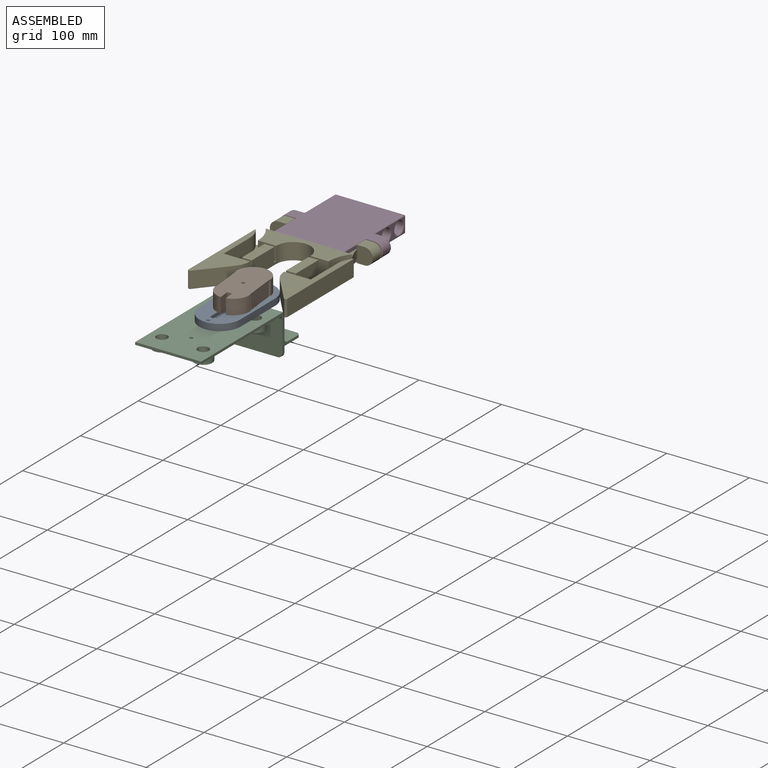
[diagram: assembled view]
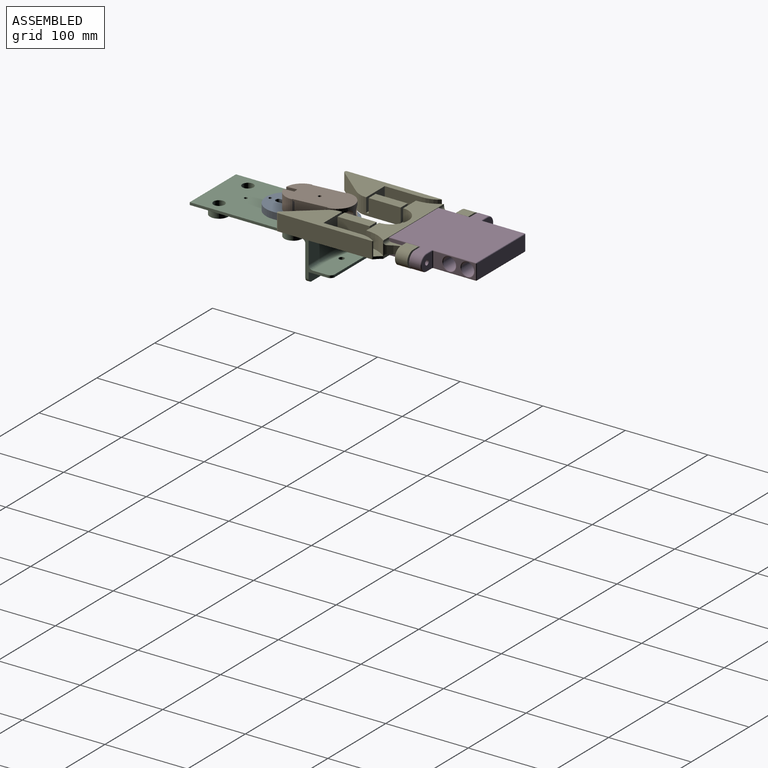
[diagram: assembled view, second angle]
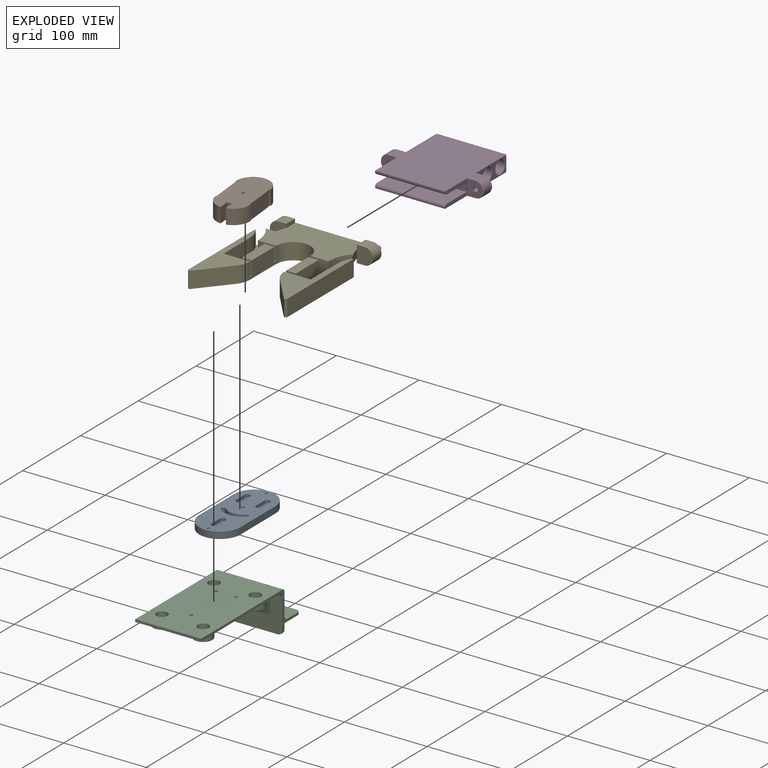
[diagram: exploded view]
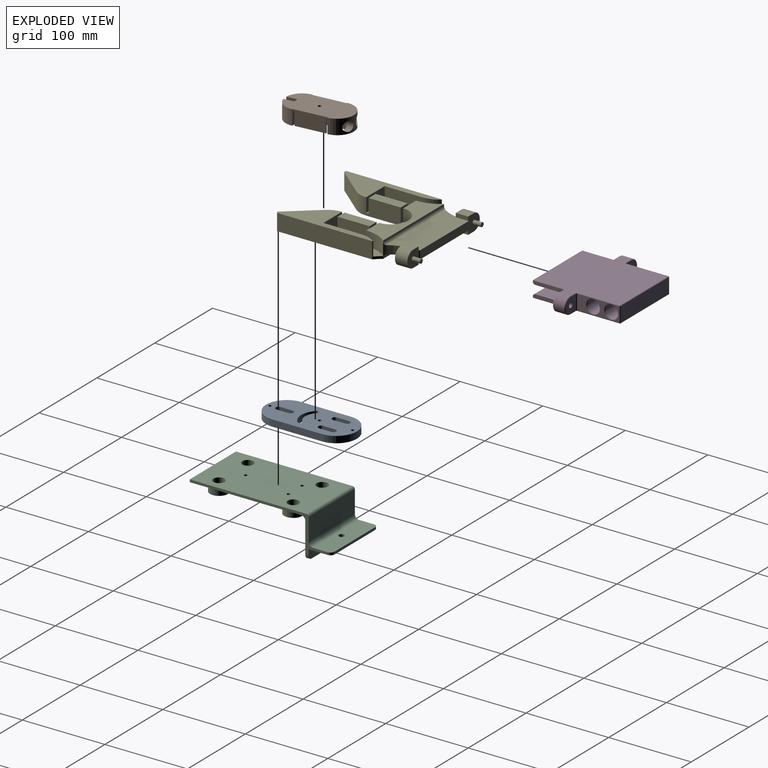
[diagram: exploded view, second angle]
ASSEMBLY  parts=5 mates=3
PART A: 42 faces, bbox 50x110x8 mm
  f0: plane 7x7mm, normal (0,0,-1), area 25.9mm2, adj f23,f38
  f1: plane 60x8mm, normal (1,0,0), area 480mm2, adj f2,f16,f24,f40
  f2: cylinder r=25mm len=50mm, axis (0,0,-1), area 628.3mm2, adj f1,f3,f24,f40
  f3: plane 60x8mm, normal (-1,0,0), area 480mm2, adj f2,f16,f24,f40
  f4: cylinder r=3.5mm len=7mm, axis (0,0,-1), area 44mm2, adj f5,f17,f24,f41
  f5: plane 15x4mm, normal (-1,0,0), area 60mm2, adj f4,f6,f24,f41
  f6: cylinder r=3.5mm len=7mm, axis (0,0,-1), area 44mm2, adj f5,f17,f24,f41
  f7: cylinder r=3.5mm len=7mm, axis (0,0,-1), area 44mm2, adj f8,f18,f24,f26
  f8: plane 15x4mm, normal (-1,0,0), area 60mm2, adj f7,f9,f24,f26
  f9: cylinder r=3.5mm len=7mm, axis (0,0,-1), area 44mm2, adj f8,f18,f24,f26
  f10: cylinder r=2.5mm len=8mm, axis (0,0,-1), area 62.8mm2, adj f11,f19,f24,f40
  f11: cylinder r=22.5mm len=31.82mm, axis (0,0,-1), area 282.7mm2, adj f10,f12,f24,f40
  f12: cylinder r=2.5mm len=8mm, axis (0,0,-1), area 62.8mm2, adj f11,f19,f24,f40
  f13: plane 15x4mm, normal (1,0,0), area 60mm2, adj f14,f22,f24,f25
  f14: cylinder r=3.5mm len=7mm, axis (0,0,-1), area 44mm2, adj f13,f15,f24,f25
  f15: plane 15x4mm, normal (-1,0,0), area 60mm2, adj f14,f22,f24,f25
  f16: cylinder r=25mm len=50mm, axis (0,0,-1), area 628.3mm2, adj f1,f3,f24,f40
  f17: plane 15x4mm, normal (1,0,0), area 60mm2, adj f4,f6,f24,f41
  f18: plane 15x4mm, normal (1,0,0), area 60mm2, adj f7,f9,f24,f26
  f19: cylinder r=17.5mm len=24.75mm, axis (0,0,-1), area 219.9mm2, adj f10,f12,f24,f40
  f20: cylinder r=1.9mm len=8mm, axis (0,0,-1), area 95.5mm2, adj f24,f40
  f21: cylinder r=1.9mm len=8mm, axis (0,0,-1), area 95.5mm2, adj f24,f40
  f22: cylinder r=3.5mm len=7mm, axis (0,0,-1), area 44mm2, adj f13,f15,f24,f25
  f23: cylinder r=2mm len=4mm, axis (0,0,-1), area 50.3mm2, adj f0,f24
  f24: plane 110x50mm, normal (0,0,1), area 4321.1mm2, adj f1,f2,f3,f4,f5,f6,f7,f8
  f25: plane 22x7mm, normal (0,0,1), area 70.9mm2, adj f13,f14,f15,f22,f27,f28,f29,f39
  f26: plane 21.99x7mm, normal (0,0,1), area 70.9mm2, adj f7,f8,f9,f18,f30,f31,f32,f36
  f27: plane 15x4mm, normal (1,0,0), area 60mm2, adj f25,f28,f39,f40
  f28: cylinder r=2mm len=4mm, axis (0,0,1), area 25.1mm2, adj f25,f27,f29,f40
  f29: plane 15x4mm, normal (-1,0,0), area 60mm2, adj f25,f28,f39,f40
  f30: cylinder r=2mm len=4mm, axis (0,0,1), area 25.4mm2, adj f26,f31,f36,f40
  f31: plane 14.93x4mm, normal (-1,0,0), area 59.7mm2, adj f26,f30,f32,f40
  f32: cylinder r=2mm len=4mm, axis (0,0,1), area 25.4mm2, adj f26,f31,f36,f40
  f33: cylinder r=2mm len=4mm, axis (0,0,1), area 25.1mm2, adj f34,f37,f40,f41
  f34: plane 15x4mm, normal (-1,0,0), area 60mm2, adj f33,f35,f40,f41
  f35: cylinder r=2mm len=4mm, axis (0,0,1), area 25.1mm2, adj f34,f37,f40,f41
  f36: plane 14.93x4mm, normal (1,0,0), area 59.7mm2, adj f26,f30,f32,f40
  f37: plane 15x4mm, normal (1,0,0), area 60mm2, adj f33,f35,f40,f41
  f38: cylinder r=3.5mm len=7mm, axis (0,0,1), area 88mm2, adj f0,f40
  f39: cylinder r=2mm len=4mm, axis (0,0,1), area 25.1mm2, adj f25,f27,f29,f40
  f40: plane 110x50mm, normal (0,0,-1), area 4508mm2, adj f1,f2,f3,f10,f11,f12,f16,f19
  f41: plane 22x7mm, normal (0,0,1), area 70.9mm2, adj f4,f5,f6,f17,f33,f34,f35,f37
PART B: 57 faces, bbox 40x79.8x23 mm
  f0: plane 67.29x40mm, normal (0,0,1), area 654.1mm2, adj f2,f3,f6,f7,f11,f12,f16,f19
  f1: plane 57.79x17.1mm, normal (0,0,1), area 492.5mm2, adj f2,f3,f4,f8,f13,f17,f18,f35
  f2: plane 16x16mm, normal (0,-1,0), area 248mm2, adj f0,f1,f18,f19,f21,f53,f54,f56
  f3: plane 18x12.58mm, normal (-1,0,0), area 217.9mm2, adj f0,f1,f4,f5,f45,f52,f55,f56
  f4: cylinder r=20mm len=19.79mm, axis (0,0,-1), area 513.1mm2, adj f1,f3,f5,f13
  f5: plane 79.79x40mm, normal (0,0,-1), area 2706.3mm2, adj f3,f4,f6,f8,f9,f11,f12,f13
  f6: cylinder r=20mm len=40mm, axis (0,0,-1), area 874.7mm2, adj f0,f5,f11,f12,f41,f42
  f7: cylinder r=17.6mm len=16mm, axis (0,0,1), area 196.9mm2, adj f0,f12,f20,f21,f42
  f8: plane 40x18mm, normal (1,0,0), area 656mm2, adj f1,f5,f12,f13,f17,f21,f36,f40
  f9: plane 40x18mm, normal (-1,0,0), area 656mm2, adj f5,f10,f11,f15,f23,f28,f29,f34
  f10: plane 57.79x17.1mm, normal (0,0,1), area 492.5mm2, adj f9,f14,f15,f22,f23,f27,f29,f30
  f11: plane 18x2.4mm, normal (0,1,0), area 40mm2, adj f0,f5,f6,f9,f24,f28
  f12: plane 18x2.4mm, normal (0,1,0), area 40mm2, adj f0,f5,f6,f7,f8,f21
  f13: plane 18x6.4mm, normal (0,-1,0), area 104mm2, adj f1,f4,f5,f8,f37,f40
  f14: cylinder r=20mm len=19.79mm, axis (0,0,-1), area 513.1mm2, adj f5,f10,f15,f46
  f15: plane 18x6.4mm, normal (0,-1,0), area 104mm2, adj f5,f9,f10,f14,f33,f34
  f16: cylinder r=2mm len=18mm, axis (0,0,-1), area 226.2mm2, adj f0,f5
  f17: plane 16x1.5mm, normal (0,-1,0), area 24mm2, adj f1,f8,f18,f21
  f18: plane 16x14mm, normal (-1,0,0), area 224mm2, adj f1,f2,f17,f21
  f19: plane 28x16mm, normal (1,0,0), area 448mm2, adj f0,f2,f20,f21
  f20: plane 16x11.17mm, normal (0,1,0), area 74.9mm2, adj f0,f7,f19,f21,f42
  f21: plane 28x17.5mm, normal (0,0,1), area 432mm2, adj f2,f7,f8,f12,f17,f18,f19,f20
  f22: plane 16x14mm, normal (1,0,0), area 224mm2, adj f10,f23,f27,f28
  f23: plane 16x1.5mm, normal (0,-1,0), area 24mm2, adj f9,f10,f22,f28
  f24: cylinder r=17.6mm len=16mm, axis (0,0,1), area 196.9mm2, adj f0,f11,f25,f28,f41
  f25: plane 16x11.17mm, normal (0,1,0), area 74.9mm2, adj f0,f24,f26,f28,f41
  f26: plane 28x16mm, normal (-1,0,0), area 448mm2, adj f0,f25,f27,f28
  f27: plane 16x16mm, normal (0,-1,0), area 248mm2, adj f0,f10,f22,f26,f28,f47,f50,f51
  f28: plane 28x17.5mm, normal (0,0,1), area 432mm2, adj f9,f11,f22,f23,f24,f25,f26,f27
  f29: plane 16x1.5mm, normal (0,1,0), area 24mm2, adj f9,f10,f30,f34
  f30: plane 16x2.1mm, normal (-0.04,1,0), area 33.6mm2, adj f10,f29,f31,f34
  f31: plane 16x5.08mm, normal (1,0,0), area 81.2mm2, adj f10,f30,f32,f34
  f32: plane 16x2mm, normal (0,1,0), area 32mm2, adj f10,f31,f33,f34
  f33: plane 16x7mm, normal (-1,0,0), area 112mm2, adj f10,f15,f32,f34
  f34: plane 7x5.6mm, normal (0,0,1), area 21.1mm2, adj f9,f15,f29,f30,f31,f32,f33
  f35: plane 16x2.1mm, normal (0.04,1,0), area 33.6mm2, adj f1,f36,f39,f40
  f36: plane 16x1.5mm, normal (0,1,0), area 24mm2, adj f1,f8,f35,f40
  f37: plane 16x7mm, normal (1,0,0), area 112mm2, adj f1,f13,f38,f40
  f38: plane 16x2mm, normal (0,1,0), area 32mm2, adj f1,f37,f39,f40
  f39: plane 16x5.08mm, normal (-1,0,0), area 81.2mm2, adj f1,f35,f38,f40
  f40: plane 7x5.6mm, normal (0,0,1), area 21.1mm2, adj f8,f13,f35,f36,f37,f38,f39
  f41: cylinder r=6mm len=12mm, axis (0,1,0), area 217.9mm2, adj f6,f24,f25
  f42: cylinder r=6mm len=12mm, axis (0,1,0), area 217.8mm2, adj f6,f7,f20
  f43: cylinder r=2.35mm len=5mm, axis (0,0,-1), area 73.8mm2, adj f0,f44
  f44: plane 4.7x4.7mm, normal (0,0,1), area 17.3mm2, adj f43
  f45: plane 18x5.8mm, normal (0,1,0), area 104.4mm2, adj f0,f3,f5,f46
  f46: plane 18x12.58mm, normal (1,0,0), area 217.9mm2, adj f0,f5,f10,f14,f45,f48,f49,f51
  f47: plane 17.71x4mm, normal (-1,0,0), area 70.9mm2, adj f0,f27,f48,f51
  f48: cylinder r=7.85mm len=13.58mm, axis (0,0,1), area 66.6mm2, adj f0,f46,f47,f51
  f49: cylinder r=9.85mm len=16.63mm, axis (0,0,1), area 82.5mm2, adj f10,f46,f50,f51
  f50: plane 16.78x4mm, normal (1,0,0), area 67.1mm2, adj f10,f27,f49,f51
  f51: plane 33.41x6.95mm, normal (0,0,1), area 71.8mm2, adj f27,f46,f47,f48,f49,f50
  f52: cylinder r=7.85mm len=13.58mm, axis (0,0,1), area 66.6mm2, adj f0,f3,f53,f56
  f53: plane 17.71x4mm, normal (1,0,0), area 70.9mm2, adj f0,f2,f52,f56
  f54: plane 16.78x4mm, normal (-1,0,0), area 67.1mm2, adj f1,f2,f55,f56
  f55: cylinder r=9.85mm len=16.63mm, axis (0,0,1), area 82.5mm2, adj f1,f3,f54,f56
  f56: plane 33.41x6.95mm, normal (0,0,1), area 71.8mm2, adj f2,f3,f52,f53,f54,f55
PART C: 47 faces, bbox 82.6x172x50 mm
  f0: plane 141x80mm, normal (0,0,-1), area 10669.7mm2, adj f2,f3,f4,f5,f6,f7,f34,f36
  f1: plane 80x12mm, normal (0,1,0), area 949.3mm2, adj f2,f3,f23,f25,f30,f31
  f2: plane 167x45mm, normal (1,0,0), area 677.8mm2, adj f0,f1,f7,f8,f21,f22,f24,f25
  f3: plane 167x45mm, normal (-1,0,0), area 677.8mm2, adj f0,f1,f7,f8,f21,f22,f24,f25
  f4: cylinder r=2mm len=4mm, axis (0,0,-1), area 37.7mm2, adj f0,f8
  f5: cylinder r=2mm len=4mm, axis (0,0,-1), area 37.7mm2, adj f0,f8
  f6: cylinder r=2mm len=4mm, axis (0,0,-1), area 37.7mm2, adj f0,f8
  f7: plane 80x3mm, normal (0,-1,0), area 240mm2, adj f0,f2,f3,f8
  f8: plane 135x80mm, normal (0,0,1), area 8299.3mm2, adj f2,f3,f4,f5,f6,f7,f32,f43
  f9: cylinder r=11mm len=22mm, axis (0,0,-1), area 414.7mm2, adj f11,f45
  f10: cylinder r=4.2mm len=8.4mm, axis (0,0,-1), area 105.6mm2, adj f11,f41
  f11: plane 22x22mm, normal (0,0,1), area 324.7mm2, adj f9,f10
  f12: cylinder r=4.2mm len=8.4mm, axis (0,0,-1), area 105.6mm2, adj f14,f39
  f13: cylinder r=11mm len=22mm, axis (0,0,-1), area 414.7mm2, adj f14,f44
  f14: plane 22x22mm, normal (0,0,1), area 324.7mm2, adj f12,f13
  f15: cylinder r=4.2mm len=8.4mm, axis (0,0,-1), area 105.6mm2, adj f17,f37
  f16: cylinder r=11mm len=22mm, axis (0,0,-1), area 414.7mm2, adj f17,f43
  f17: plane 22x22mm, normal (0,0,1), area 324.7mm2, adj f15,f16
  f18: cylinder r=4.2mm len=8.4mm, axis (0,0,-1), area 105.6mm2, adj f20,f35
  f19: cylinder r=11mm len=22mm, axis (0,0,-1), area 414.7mm2, adj f20,f46
  f20: plane 22x22mm, normal (0,0,1), area 324.7mm2, adj f18,f19
  f21: plane 80x42mm, normal (0,-1,0), area 3349.3mm2, adj f2,f3,f23,f30,f31,f32
  f22: plane 80x27mm, normal (0,1,0), area 2160mm2, adj f2,f3,f27,f42
  f23: plane 70x4mm, normal (0,0,1), area 280mm2, adj f1,f21,f30,f31
  f24: plane 80x23mm, normal (0,0,-1), area 1795.1mm2, adj f2,f3,f26,f27,f28,f29,f33
  f25: plane 80x28mm, normal (0,0,1), area 2195.1mm2, adj f1,f2,f3,f26,f28,f29,f33
  f26: plane 70x3mm, normal (0,1,0), area 210mm2, adj f24,f25,f28,f29
  f27: cylinder r=5mm len=80mm, axis (-1,0,0), area 628.3mm2, adj f2,f3,f22,f24
  f28: cylinder r=5mm len=5mm, axis (0,0,1), area 23.6mm2, adj f3,f24,f25,f26
  f29: cylinder r=5mm len=5mm, axis (0,0,-1), area 23.6mm2, adj f2,f24,f25,f26
  f30: cylinder r=5mm len=5mm, axis (0,1,0), area 31.4mm2, adj f1,f2,f21,f23
  f31: cylinder r=5mm len=5mm, axis (0,-1,0), area 31.4mm2, adj f1,f3,f21,f23
  f32: cylinder r=5mm len=80mm, axis (1,0,0), area 628.3mm2, adj f2,f3,f8,f21
  f33: cylinder r=3.3mm len=6.6mm, axis (0,0,1), area 62.2mm2, adj f24,f25
  f34: cylinder r=6.75mm len=13.5mm, axis (0,0,-1), area 339.3mm2, adj f0,f35
  f35: plane 13.5x13.5mm, normal (0,0,-1), area 87.7mm2, adj f18,f34
  f36: cylinder r=6.75mm len=13.5mm, axis (0,0,-1), area 339.3mm2, adj f0,f37
  f37: plane 13.5x13.5mm, normal (0,0,-1), area 87.7mm2, adj f15,f36
  f38: cylinder r=6.75mm len=13.5mm, axis (0,0,-1), area 339.3mm2, adj f0,f39
  f39: plane 13.5x13.5mm, normal (0,0,-1), area 87.7mm2, adj f12,f38
  f40: cylinder r=6.75mm len=13.5mm, axis (0,0,-1), area 339.3mm2, adj f0,f41
  f41: plane 13.5x13.5mm, normal (0,0,-1), area 87.7mm2, adj f10,f40
  f42: cylinder r=3mm len=80mm, axis (-1,0,0), area 377mm2, adj f0,f2,f3,f22
  f43: torus R=14mm, axis (0,0,1), area 358mm2, adj f8,f16
  f44: torus R=14mm, axis (0,0,1), area 358mm2, adj f8,f13
  f45: torus R=14mm, axis (0,0,1), area 358mm2, adj f8,f9
  f46: torus R=14mm, axis (0,0,1), area 358mm2, adj f8,f19
PART D: 64 faces, bbox 126.6x106x21.6 mm
  f0: plane 51x18mm, normal (1,0,0), area 442.4mm2, adj f37,f40,f41,f42,f60,f61
  f1: plane 38.03x18mm, normal (1,0,0), area 303.3mm2, adj f7,f8,f9,f10,f11,f13,f25,f26
  f2: plane 83x18mm, normal (0,1,0), area 1494mm2, adj f42,f45,f46,f47
  f3: plane 105x104.03mm, normal (0,0,1), area 8922.2mm2, adj f15,f21,f24,f26,f28,f30,f32,f35
  f4: plane 105x104.03mm, normal (0,0,-1), area 8922.2mm2, adj f15,f21,f23,f25,f27,f29,f31,f36
  f5: cylinder r=7.7mm len=83mm, axis (1,0,0), area 4015.6mm2, adj f58,f60
  f6: cylinder r=7.7mm len=83mm, axis (1,0,0), area 4015.6mm2, adj f59,f61
  f7: plane 85x34mm, normal (0,0,-1), area 2890mm2, adj f1,f11,f17,f63
  f8: plane 85x0.9mm, normal (0,-1,0), area 76.5mm2, adj f1,f17,f28,f63
  f9: plane 85x34mm, normal (0,0,1), area 2890mm2, adj f1,f11,f17,f62
  f10: plane 85x0.9mm, normal (0,-1,0), area 76.5mm2, adj f1,f17,f27,f62
  f11: plane 85x10.2mm, normal (0,-1,0), area 867mm2, adj f1,f7,f9,f17
  f12: plane 18x18mm, normal (0,1,0), area 261mm2, adj f14,f34,f35,f36,f37
  f13: plane 19x18mm, normal (0,-1,0), area 279mm2, adj f1,f14,f22,f23,f24
  f14: cylinder r=3mm len=15mm, axis (0,-1,0), area 282.7mm2, adj f12,f13
  f15: cylinder r=10mm len=20mm, axis (0,1,0), area 408.4mm2, adj f3,f4,f22,f34
  f16: plane 51x18mm, normal (-1,0,0), area 442.4mm2, adj f47,f50,f51,f52,f58,f59
  f17: plane 38.03x18mm, normal (-1,0,0), area 303.3mm2, adj f7,f8,f9,f10,f11,f19,f29,f30
  f18: plane 18x18mm, normal (0,1,0), area 261mm2, adj f20,f52,f55,f56,f57
  f19: plane 19x18mm, normal (0,-1,0), area 279mm2, adj f17,f20,f31,f32,f33
  f20: cylinder r=3mm len=15mm, axis (0,-1,0), area 282.7mm2, adj f18,f19
  f21: cylinder r=10mm len=20mm, axis (0,1,0), area 408.4mm2, adj f3,f4,f33,f57
  f22: torus R=9mm, axis (0,1,0), area 47.6mm2, adj f13,f15,f23,f24
  f23: cylinder r=1mm len=11mm, axis (-1,0,0), area 16.3mm2, adj f4,f13,f22,f25
  f24: cylinder r=1mm len=11mm, axis (1,0,0), area 16.3mm2, adj f3,f13,f22,f26
  f25: cylinder r=1mm len=39.03mm, axis (0,1,0), area 59.7mm2, adj f1,f4,f23,f27
  f26: cylinder r=1mm len=39.03mm, axis (0,-1,0), area 59.7mm2, adj f1,f3,f24,f28
  f27: cylinder r=1mm len=85mm, axis (1,0,0), area 132.4mm2, adj f4,f10,f25,f29
  f28: cylinder r=1mm len=85mm, axis (-1,0,0), area 132.4mm2, adj f3,f8,f26,f30
  f29: cylinder r=1mm len=39.03mm, axis (0,1,0), area 59.7mm2, adj f4,f17,f27,f31
  f30: cylinder r=1mm len=39.03mm, axis (0,-1,0), area 59.7mm2, adj f3,f17,f28,f32
  f31: cylinder r=1mm len=11mm, axis (1,0,0), area 16.3mm2, adj f4,f19,f29,f33
  f32: cylinder r=1mm len=11mm, axis (-1,0,0), area 16.3mm2, adj f3,f19,f30,f33
  f33: torus R=9mm, axis (0,1,0), area 47.6mm2, adj f19,f21,f31,f32
  f34: torus R=9mm, axis (0,1,0), area 47.6mm2, adj f12,f15,f35,f36
  f35: cylinder r=1mm len=9mm, axis (-1,0,0), area 14.1mm2, adj f3,f12,f34,f38
  f36: cylinder r=1mm len=9mm, axis (1,0,0), area 14.1mm2, adj f4,f12,f34,f39
  f37: cylinder r=1mm len=18mm, axis (0,0,1), area 28.3mm2, adj f0,f12,f38,f39
  f38: torus R=2mm, axis (0,0,1), area 3.4mm2, adj f3,f35,f37,f40
  f39: torus R=2mm, axis (0,0,1), area 3.4mm2, adj f4,f36,f37,f41
  f40: cylinder r=1mm len=51mm, axis (0,-1,0), area 80.1mm2, adj f0,f3,f38,f43
  f41: cylinder r=1mm len=51mm, axis (0,1,0), area 80.1mm2, adj f0,f4,f39,f44
  f42: cylinder r=1mm len=18mm, axis (0,0,1), area 28.3mm2, adj f0,f2,f43,f44
  f43: sphere r=1mm, area 1.6mm2, adj f40,f42,f45
  f44: sphere r=1mm, area 1.6mm2, adj f41,f42,f46
  f45: cylinder r=1mm len=83mm, axis (1,0,0), area 130.4mm2, adj f2,f3,f43,f48
  f46: cylinder r=1mm len=83mm, axis (-1,0,0), area 130.4mm2, adj f2,f4,f44,f49
  f47: cylinder r=1mm len=18mm, axis (0,0,1), area 28.3mm2, adj f2,f16,f48,f49
  f48: sphere r=1mm, area 1.6mm2, adj f45,f47,f50
  f49: sphere r=1mm, area 1.6mm2, adj f46,f47,f51
  f50: cylinder r=1mm len=51mm, axis (0,-1,0), area 80.1mm2, adj f3,f16,f48,f53
  f51: cylinder r=1mm len=51mm, axis (0,1,0), area 80.1mm2, adj f4,f16,f49,f54
  f52: cylinder r=1mm len=18mm, axis (0,0,1), area 28.3mm2, adj f16,f18,f53,f54
  f53: torus R=2mm, axis (0,0,1), area 3.4mm2, adj f3,f50,f52,f55
  f54: torus R=2mm, axis (0,0,1), area 3.4mm2, adj f4,f51,f52,f56
  f55: cylinder r=1mm len=9mm, axis (1,0,0), area 14.1mm2, adj f3,f18,f53,f57
  f56: cylinder r=1mm len=9mm, axis (-1,0,0), area 14.1mm2, adj f4,f18,f54,f57
  f57: torus R=9mm, axis (0,1,0), area 47.6mm2, adj f18,f21,f55,f56
  f58: torus R=8.7mm, axis (-1,0,0), area 79.6mm2, adj f5,f16
  f59: torus R=8.7mm, axis (-1,0,0), area 79.6mm2, adj f6,f16
  f60: torus R=8.7mm, axis (1,0,0), area 79.6mm2, adj f0,f5
  f61: torus R=8.7mm, axis (1,0,0), area 79.6mm2, adj f0,f6
  f62: cylinder r=3mm len=85mm, axis (1,0,0), area 400.6mm2, adj f1,f9,f10,f17
  f63: cylinder r=3mm len=85mm, axis (-1,0,0), area 400.6mm2, adj f1,f7,f8,f17
PART E: 68 faces, bbox 125x170.8x20.3 mm
  f0: plane 104.87x2mm, normal (0,1,0), area 209.7mm2, adj f3,f45,f56,f61
  f1: cylinder r=51.03mm len=28.68mm, axis (0,0,-1), area 268.8mm2, adj f7,f8,f15,f21,f42,f43,f44,f45
  f2: plane 44.9x20mm, normal (-1,0,0), area 796mm2, adj f6,f10,f43,f47,f63,f65,f67
  f3: plane 104.87x27.28mm, normal (0,0,1), area 1822.5mm2, adj f0,f10,f55,f56,f61,f62
  f4: plane 117.09x39.2mm, normal (0,0,1), area 1681.5mm2, adj f25,f26,f36,f37,f46,f49,f50,f51
  f5: plane 38.9x12mm, normal (0,0,1), area 466.8mm2, adj f24,f52,f53,f54
  f6: plane 38.9x12mm, normal (0,0,1), area 466.8mm2, adj f2,f63,f64,f65
  f7: plane 101.05x34mm, normal (0,0,-1), area 3033.7mm2, adj f1,f9,f13,f15,f22,f23,f28,f31
  f8: plane 101.05x34mm, normal (0,0,1), area 3033.7mm2, adj f1,f9,f13,f15,f22,f23,f27,f31
  f9: plane 20x20mm, normal (0,1,0), area 332.1mm2, adj f7,f8,f14,f16,f17,f19,f22,f39
  f10: cylinder r=20.8mm len=41.6mm, axis (0,0,-1), area 1306.9mm2, adj f2,f3,f24,f43,f55,f62
  f11: plane 35.54x29.82mm, normal (-0.77,-0.64,0), area 927.8mm2, adj f20,f41,f43,f47
  f12: plane 113.61x20mm, normal (1,0,0), area 2272.1mm2, adj f20,f21,f41,f43
  f13: plane 81.9x10mm, normal (0,1,0), area 819mm2, adj f7,f8,f22,f38
  f14: plane 15x9.5mm, normal (0,0,1), area 142.5mm2, adj f9,f15,f19,f40
  f15: plane 20x19.5mm, normal (0,-1,0), area 343.7mm2, adj f1,f7,f8,f14,f16,f19,f39,f40
  f16: plane 15x9.5mm, normal (0,0,-1), area 142.5mm2, adj f9,f15,f19,f39
  f17: cylinder r=2.52mm len=10mm, axis (0,-1,0), area 158.7mm2, adj f9,f18
  f18: plane 5.05x5.05mm, normal (0,1,0), area 20mm2, adj f17
  f19: cylinder r=10mm len=20mm, axis (0,-1,0), area 471.2mm2, adj f9,f14,f15,f16
  f20: cylinder r=2mm len=20mm, axis (0,0,-1), area 97.7mm2, adj f11,f12,f41,f43
  f21: cylinder r=2mm len=20mm, axis (0,0,-1), area 33.5mm2, adj f1,f12,f41,f43,f60
  f22: cylinder r=2mm len=10mm, axis (0,0,1), area 17.7mm2, adj f7,f8,f9,f13
  f23: cylinder r=51.03mm len=28.68mm, axis (0,0,-1), area 268.8mm2, adj f7,f8,f31,f37,f42,f43,f44,f45
  f24: plane 44.9x20mm, normal (1,0,0), area 796mm2, adj f5,f10,f43,f46,f52,f54,f57
  f25: plane 35.54x29.82mm, normal (0.77,-0.64,0), area 927.8mm2, adj f4,f36,f43,f46
  f26: plane 113.61x20mm, normal (-1,0,0), area 2272.1mm2, adj f4,f36,f37,f43
  f27: plane 15x4.66mm, normal (1,0,0), area 69.8mm2, adj f8,f29,f30,f31
  f28: plane 15x5.34mm, normal (1,0,0), area 80.2mm2, adj f7,f29,f31,f32
  f29: plane 20x20mm, normal (0,1,0), area 337.1mm2, adj f27,f28,f30,f32,f33,f35,f38
  f30: plane 15x10mm, normal (0,0,1), area 150mm2, adj f27,f29,f31,f35
  f31: plane 20x20mm, normal (0,-1,0), area 348.7mm2, adj f7,f8,f23,f27,f28,f30,f32,f35
  f32: plane 15x10mm, normal (0,0,-1), area 150mm2, adj f28,f29,f31,f35
  f33: cylinder r=2.52mm len=10mm, axis (0,-1,0), area 158.7mm2, adj f29,f34
  f34: plane 5.05x5.05mm, normal (0,1,0), area 20mm2, adj f33
  f35: cylinder r=10mm len=20mm, axis (0,-1,0), area 471.2mm2, adj f29,f30,f31,f32
  f36: cylinder r=2mm len=20mm, axis (0,0,-1), area 97.7mm2, adj f4,f25,f26,f43
  f37: cylinder r=2mm len=20mm, axis (0,0,-1), area 33.5mm2, adj f4,f23,f26,f43,f49
  f38: cylinder r=2mm len=10mm, axis (0,0,1), area 17.7mm2, adj f7,f8,f13,f29
  f39: plane 15x5.34mm, normal (-1,0,0), area 80.2mm2, adj f7,f9,f15,f16
  f40: plane 15x4.66mm, normal (-1,0,0), area 69.8mm2, adj f8,f9,f14,f15
  f41: plane 117.09x39.2mm, normal (0,0,1), area 1681.5mm2, adj f11,f12,f20,f21,f47,f59,f60,f66
  f42: plane 105.19x2mm, normal (0,1,0), area 210.4mm2, adj f1,f23,f43,f44
  f43: plane 124.51x120mm, normal (0,0,-1), area 8564.8mm2, adj f1,f2,f10,f11,f12,f20,f21,f23
  f44: cylinder r=3mm len=105.19mm, axis (-1,0,0), area 488.4mm2, adj f1,f7,f23,f42
  f45: cylinder r=3mm len=105.19mm, axis (-1,0,0), area 488.4mm2, adj f0,f1,f8,f23,f48,f58
  f46: cylinder r=25mm len=20mm, axis (0,0,-1), area 349.1mm2, adj f4,f24,f25,f43,f51
  f47: cylinder r=25mm len=20mm, axis (0,0,-1), area 349.1mm2, adj f2,f11,f41,f43,f66
  f48: plane 15x0.16mm, normal (0,-1,0), area 2.4mm2, adj f23,f45,f56,f57
  f49: cylinder r=33.45mm len=19.87mm, axis (0,0,1), area 361.7mm2, adj f4,f37,f50,f57
  f50: plane 44.9x17mm, normal (1,0,0), area 763.3mm2, adj f4,f49,f51,f57
  f51: plane 32x17mm, normal (0,1,0), area 544mm2, adj f4,f46,f50,f57
  f52: plane 17x12mm, normal (0,-1,0), area 204mm2, adj f5,f24,f53,f57
  f53: plane 38.9x17mm, normal (-1,0,0), area 661.3mm2, adj f5,f52,f54,f57
  f54: plane 17x12mm, normal (0,1,0), area 204mm2, adj f5,f24,f53,f57
  f55: plane 22x17mm, normal (0,-1,0), area 374mm2, adj f3,f10,f56,f57
  f56: cylinder r=43.45mm len=27.28mm, axis (0,0,1), area 501.5mm2, adj f0,f3,f48,f55,f57
  f57: plane 72.18x38.54mm, normal (0,0,1), area 1222.8mm2, adj f23,f24,f48,f49,f50,f51,f52,f53
  f58: plane 15x0.16mm, normal (0,-1,0), area 2.4mm2, adj f1,f45,f61,f67
  f59: plane 44.9x17mm, normal (-1,0,0), area 763.3mm2, adj f41,f60,f66,f67
  f60: cylinder r=33.45mm len=19.87mm, axis (0,0,1), area 361.7mm2, adj f21,f41,f59,f67
  f61: cylinder r=43.45mm len=27.28mm, axis (0,0,1), area 501.5mm2, adj f0,f3,f58,f62,f67
  f62: plane 22x17mm, normal (0,-1,0), area 374mm2, adj f3,f10,f61,f67
  f63: plane 17x12mm, normal (0,1,0), area 204mm2, adj f2,f6,f64,f67
  f64: plane 38.9x17mm, normal (1,0,0), area 661.3mm2, adj f6,f63,f65,f67
  f65: plane 17x12mm, normal (0,-1,0), area 204mm2, adj f2,f6,f64,f67
  f66: plane 32x17mm, normal (0,1,0), area 544mm2, adj f41,f47,f59,f67
  f67: plane 72.18x38.54mm, normal (0,0,1), area 1222.8mm2, adj f1,f2,f58,f59,f60,f61,f62,f63
PLACE A t=(0,-9.85,4)mm
PLACE B rot(axis=(1,0.05,0),180deg) t=(-1.92,30.06,26)mm
PLACE C rot(axis=(0,1,0),180deg) t=(0,-49.35,0)mm
PLACE D rot(axis=(0,1,0),180deg) t=(0.35,196.97,28)mm
PLACE E rot(axis=(0,0,-1),0.1deg) t=(0.11,69.68,13)mm
MATE fastened E.f13 <-> D.f11  axis (0,1,0) through (0.28,160.96,18)mm
MATE parallel A.f22 <-> C.f4  axis (0,0,1) through (-12,20.15,0)mm
MATE revolute A.f23 <-> B.f16  axis (0,0,1) through (0,10.15,8)mm
